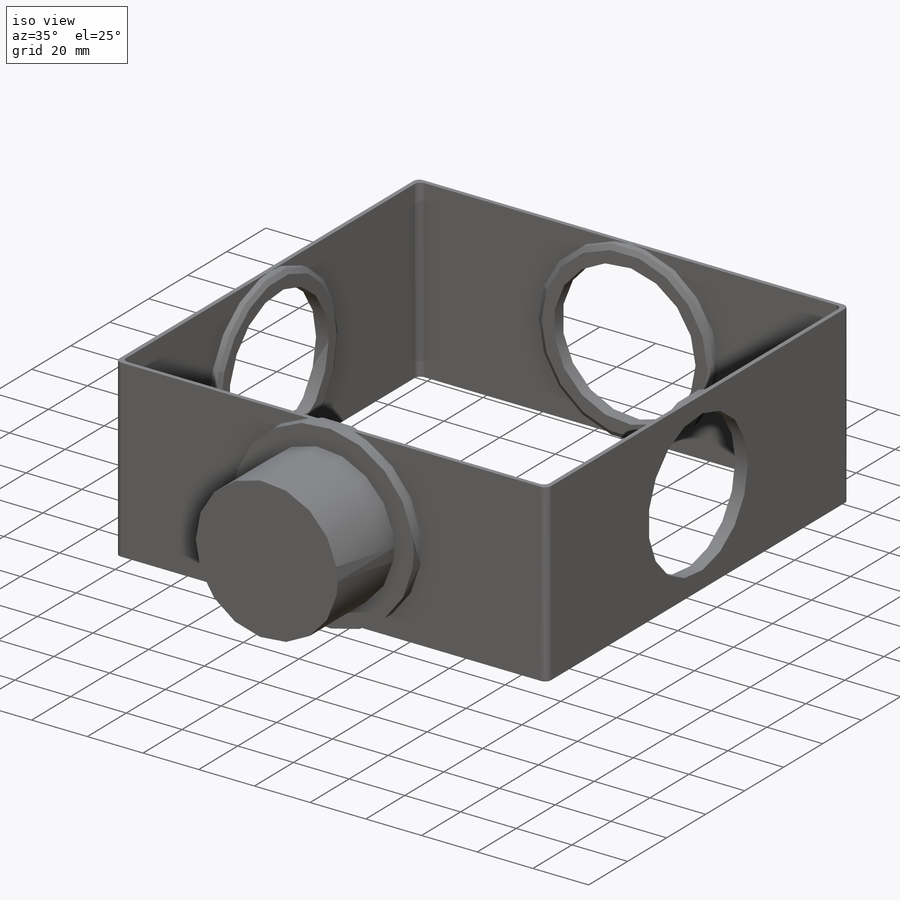
[diagram: iso view]
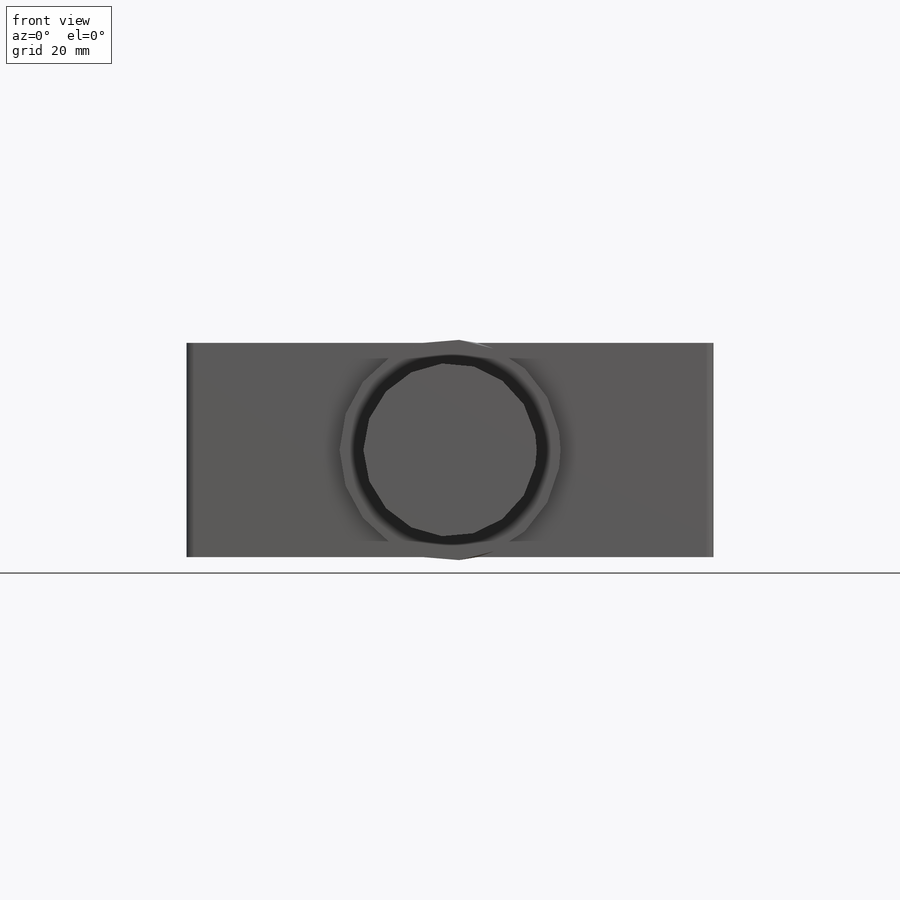
[diagram: front view]
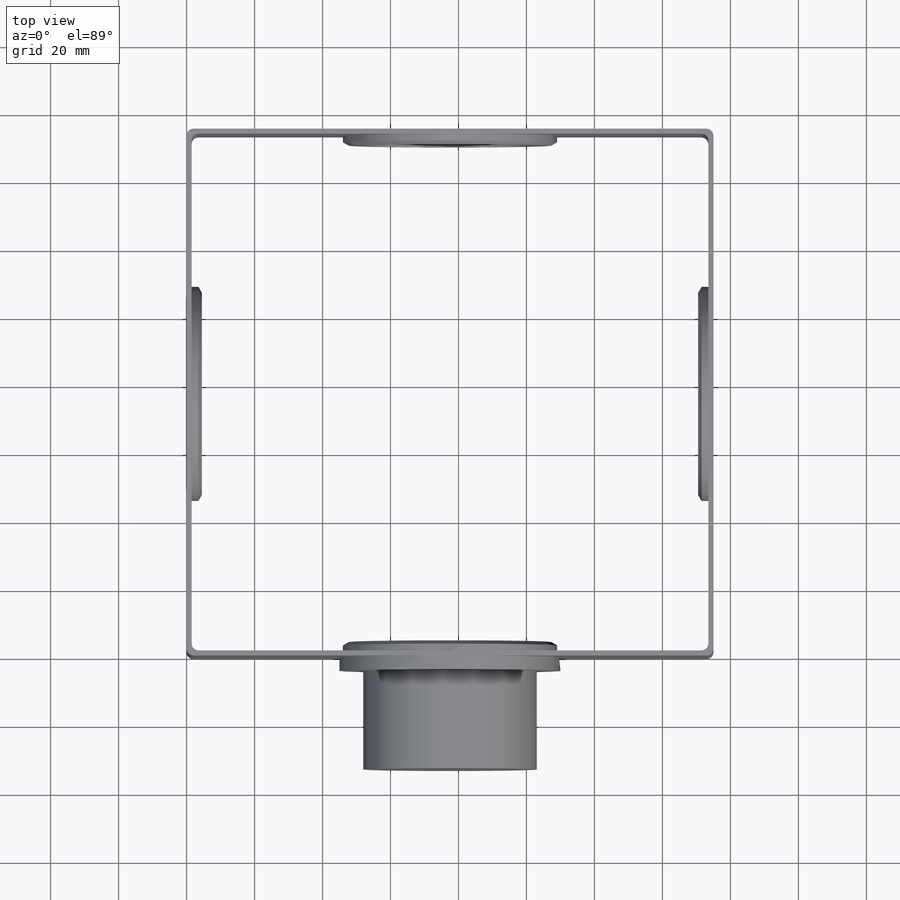
[diagram: top view]
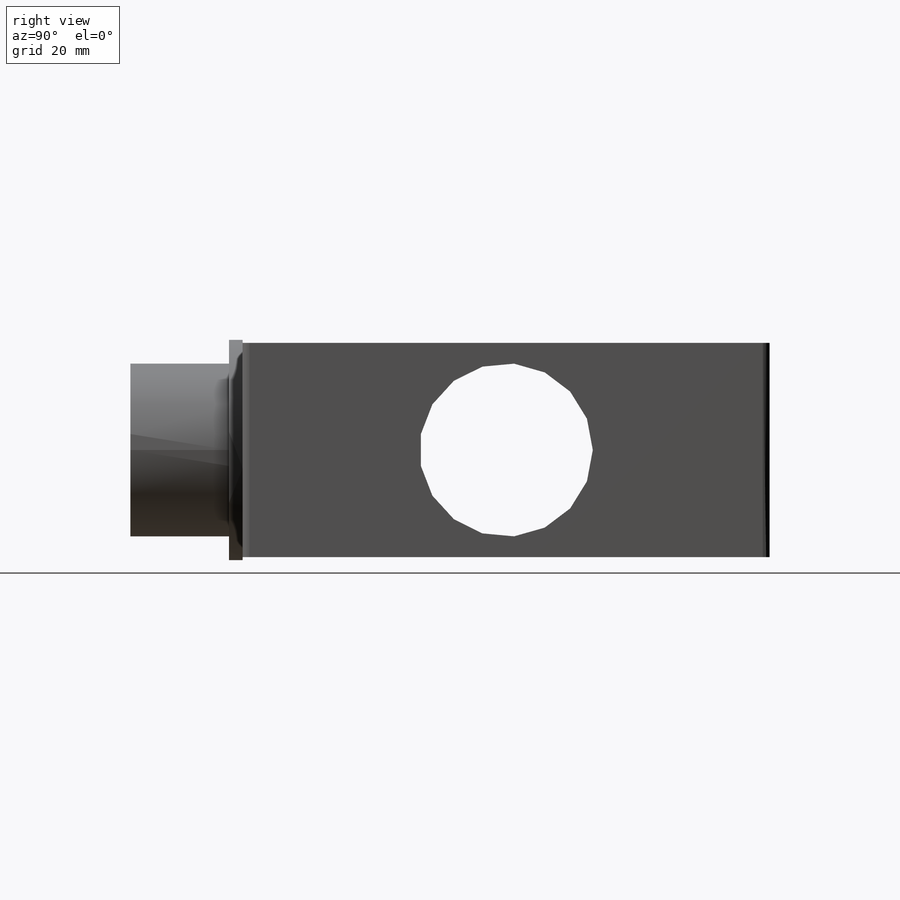
[diagram: right view]
SOLIDWORKS PART (.sldprt)
format: sldprt  version: not decoded by parser v0  size: 415,744 bytes
history: native  units: mm
features: sketch x9, extrude x7, plane x3, chamfer x3, cut_extrude x2, material x1 (+10 scaffold rows collapsed)
feature tree (35):
  scaffold x10  (default folders/planes/origin — collapsed)
  material  "AISI Тип 316L нержавеющая сталь"
  plane  "Спереди"
  plane  "Сверху"
  plane  "Справа"
  sketch  "Эскиз1"  dims[c1.D7=2.0mm c1.D1=~86.622722mm c1.D2=~87.977967mm c2.D1=155.0mm c2.D2=155.0mm c2.D3=~147.522816mm c2.D4=~148.33116mm c3.D3=1.5mm c3.D4=1.5mm c3.D5=1.5mm c3.D6=1.5mm]
  extrude  "Бобышка-Вытянуть1"  Depth=63mm
  sketch  "Эскиз2"  dims[D1=77.5mm]
  cut_extrude  "Вырез-Вытянуть1"  [1 undecoded]
  sketch  "Эскиз3"  dims[D1=77.5mm]
  cut_extrude  "Вырез-Вытянуть2"  [1 undecoded]
  sketch  "Эскиз4"  dims[c1.D1=51.0mm c1.D2=63.0mm c2.D1=~35.294514mm]
  extrude  "шайба1"  Depth=3mm
  chamfer  "Фаска1 шайба"  Distance=1mm Angle=60deg
  sketch  "Эскиз5"  dims[c1.D1=51.0mm c1.D2=63.0mm c2.D1=~34.180683mm]
  extrude  "Бобышка-Вытянуть4"  Depth=3mm
  chamfer  "Фаска2"  Distance=1mm Angle=60deg
  sketch  "Эскиз7"  dims[c1.D1=51.0mm c1.D2=63.0mm c2.D1=~34.180683mm]
  sketch  "Эскиз8"  dims[c1.D1=51.0mm c1.D2=63.0mm c2.D1=~39.192922mm]
  extrude  "Бобышка-Вытянуть5"  Depth=3mm
  extrude  "Бобышка-Вытянуть6"  Depth=3mm
  chamfer  "Фаска3"  Distance=1mm Angle=60deg
  sketch  "Эскиз9"  dims[c1.D1=65.0mm c1.D2=~0.278458mm c2.D1=~43.926703mm]
  extrude  "Бобышка-Вытянуть7"  Depth=4mm
  sketch  "Эскиз10"  dims[D1=~41.83827mm]
  extrude  "Бобышка-Вытянуть8"  Depth=29mm
decode coverage: 19 of 21 modeling features carry decoded parameters
note: ~ marks probable driven/reference dimensions
note: 2 parameter values undecoded
note: suppression state not decoded; provenance and decode notes live in map.json
